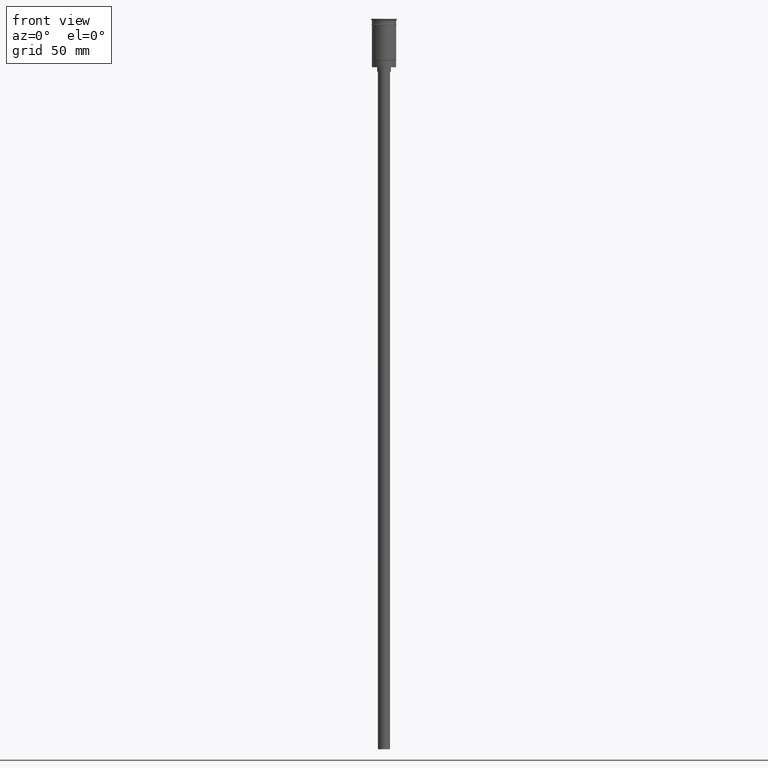
[diagram: clean part render]
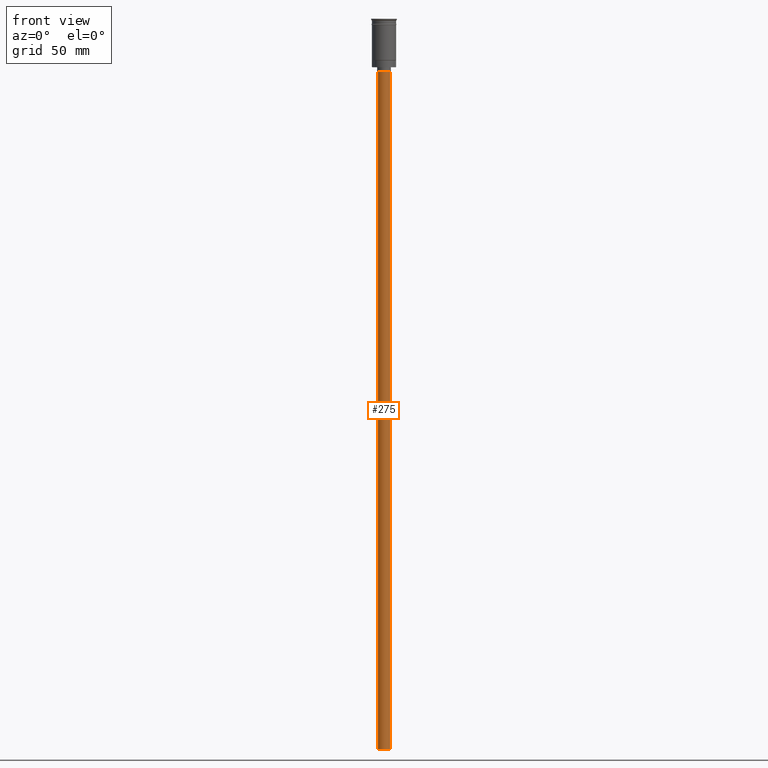
[diagram: same view with one face highlighted and labeled with its STEP entity id]
A machine part, front view. The second image highlights one B-rep face of the part: STEP entity #275.
In plain terms, the highlighted cylindrical surface (edge-blend (fillet) strip) has radius 4 mm, axis along (-0, -0, 1).
Its self-contained STEP definition (entity closure, byte-faithful):
#51 = AXIS2_PLACEMENT_3D ( 'NONE', #1480, #1044, #83 ) ;
#52 = VECTOR ( 'NONE', #914, 1000.000000000000000 ) ;
#83 = DIRECTION ( 'NONE',  ( 1.000000000000000000, 0.000000000000000000, 0.000000000000000000 ) ) ;
#91 = CARTESIAN_POINT ( 'NONE',  ( 4.000000000000000000, 0.000000000000000000, -482.0000000000000000 ) ) ;
#136 = DIRECTION ( 'NONE',  ( 0.000000000000000000, 0.000000000000000000, -1.000000000000000000 ) ) ;
#275 = ADVANCED_FACE ( 'NONE', ( #994 ), #1375, .T. ) ;
#280 = EDGE_CURVE ( 'NONE', #714, #997, #1101, .T. ) ;
#337 = VECTOR ( 'NONE', #1353, 1000.000000000000000 ) ;
#397 = VERTEX_POINT ( 'NONE', #697 ) ;
#424 = EDGE_CURVE ( 'NONE', #397, #549, #1204, .T. ) ;
#453 = CARTESIAN_POINT ( 'NONE',  ( 0.000000000000000000, 0.000000000000000000, -482.0000000000000000 ) ) ;
#549 = VERTEX_POINT ( 'NONE', #1134 ) ;
#578 = LINE ( 'NONE', #91, #52 ) ;
#582 = ORIENTED_EDGE ( 'NONE', *, *, #424, .F. ) ;
#697 = CARTESIAN_POINT ( 'NONE',  ( 4.000000000000000000, 0.000000000000000000, -482.0000000000000000 ) ) ;
#714 = VERTEX_POINT ( 'NONE', #1544 ) ;
#725 = EDGE_CURVE ( 'NONE', #397, #714, #578, .T. ) ;
#743 = CARTESIAN_POINT ( 'NONE',  ( 0.000000000000000000, 0.000000000000000000, -35.00000000000000000 ) ) ;
#914 = DIRECTION ( 'NONE',  ( -0.000000000000000000, -0.000000000000000000, 1.000000000000000000 ) ) ;
#924 = DIRECTION ( 'NONE',  ( 0.000000000000000000, 0.000000000000000000, -1.000000000000000000 ) ) ;
#938 = LINE ( 'NONE', #1192, #337 ) ;
#989 = AXIS2_PLACEMENT_3D ( 'NONE', #453, #924, #1581 ) ;
#994 = FACE_OUTER_BOUND ( 'NONE', #1081, .T. ) ;
#997 = VERTEX_POINT ( 'NONE', #1003 ) ;
#1003 = CARTESIAN_POINT ( 'NONE',  ( -4.000000000000000000, 4.898587196589412829E-16, -35.00000000000000000 ) ) ;
#1044 = DIRECTION ( 'NONE',  ( -0.000000000000000000, -0.000000000000000000, 1.000000000000000000 ) ) ;
#1061 = DIRECTION ( 'NONE',  ( -1.000000000000000000, 0.000000000000000000, 0.000000000000000000 ) ) ;
#1081 = EDGE_LOOP ( 'NONE', ( #1597, #582, #1194, #1181 ) ) ;
#1101 = CIRCLE ( 'NONE', #1538, 4.000000000000000000 ) ;
#1134 = CARTESIAN_POINT ( 'NONE',  ( -4.000000000000000000, 4.898587196589412829E-16, -482.0000000000000000 ) ) ;
#1176 = EDGE_CURVE ( 'NONE', #549, #997, #938, .T. ) ;
#1181 = ORIENTED_EDGE ( 'NONE', *, *, #280, .T. ) ;
#1192 = CARTESIAN_POINT ( 'NONE',  ( -4.000000000000000000, 4.898587196589412829E-16, -482.0000000000000000 ) ) ;
#1194 = ORIENTED_EDGE ( 'NONE', *, *, #725, .T. ) ;
#1204 = CIRCLE ( 'NONE', #989, 4.000000000000000000 ) ;
#1353 = DIRECTION ( 'NONE',  ( -0.000000000000000000, -0.000000000000000000, 1.000000000000000000 ) ) ;
#1375 = CYLINDRICAL_SURFACE ( 'NONE', #51, 4.000000000000000000 ) ;
#1480 = CARTESIAN_POINT ( 'NONE',  ( 0.000000000000000000, 0.000000000000000000, -482.0000000000000000 ) ) ;
#1538 = AXIS2_PLACEMENT_3D ( 'NONE', #743, #136, #1061 ) ;
#1544 = CARTESIAN_POINT ( 'NONE',  ( 4.000000000000000000, 0.000000000000000000, -35.00000000000000000 ) ) ;
#1581 = DIRECTION ( 'NONE',  ( -1.000000000000000000, 0.000000000000000000, 0.000000000000000000 ) ) ;
#1597 = ORIENTED_EDGE ( 'NONE', *, *, #1176, .F. ) ;